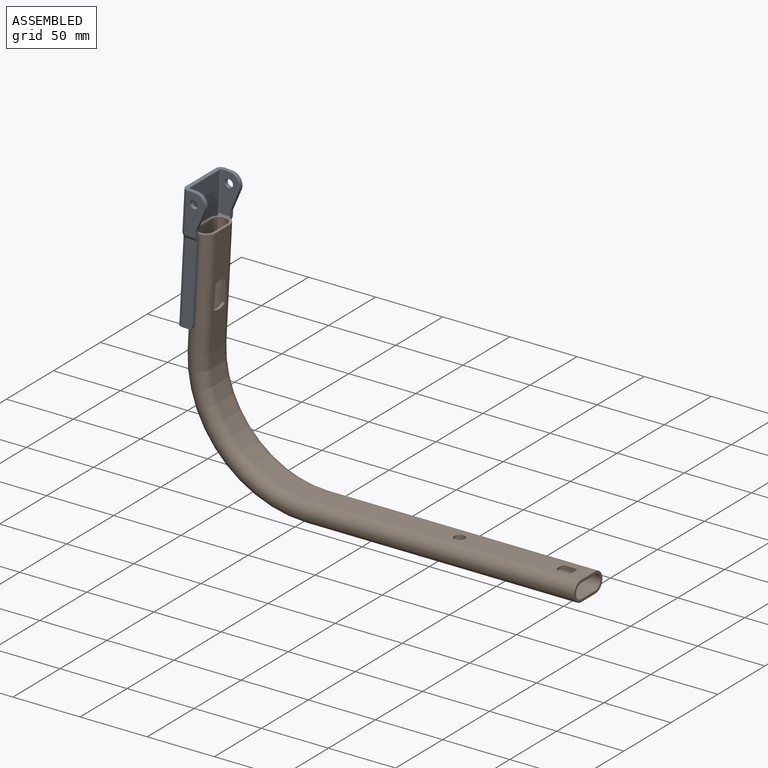
[diagram: assembled view]
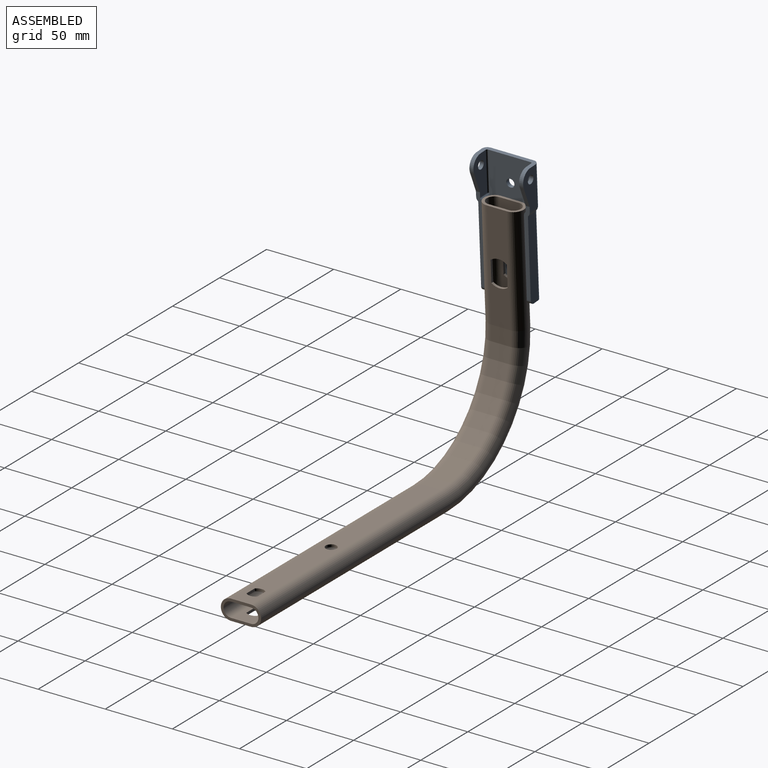
[diagram: assembled view, second angle]
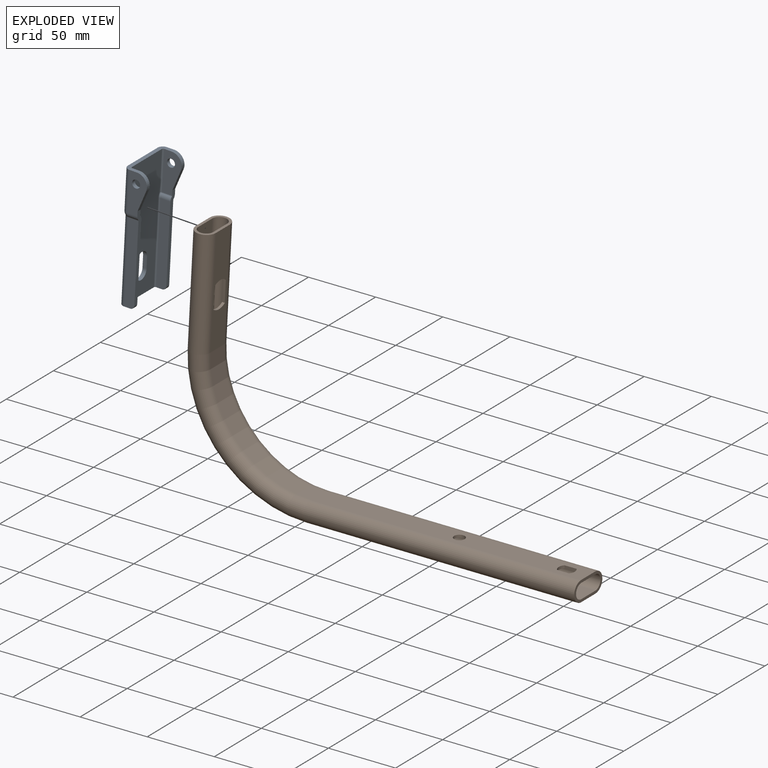
[diagram: exploded view]
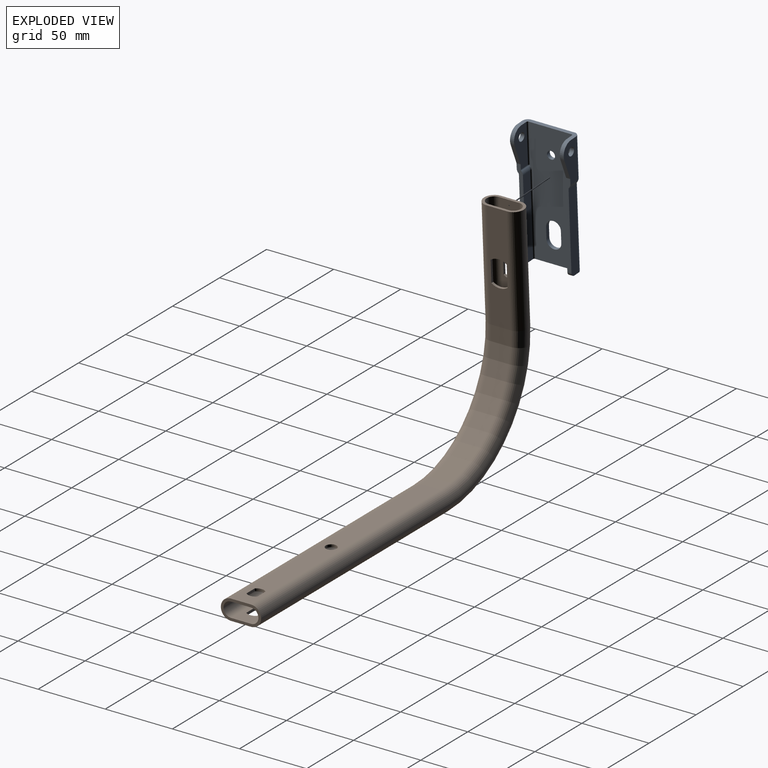
[diagram: exploded view, second angle]
ASSEMBLY  parts=2 mates=2
PART A: 59 faces, bbox 94x40x17.5 mm
  f0: plane 40x9.5mm, normal (1,0,0), area 152.6mm2, adj f1,f2,f3,f4,f5,f6,f14,f16
  f1: plane 29.59x13.5mm, normal (0,1,0), area 285.7mm2, adj f0,f16,f17,f19,f27,f33,f55
  f2: plane 29.59x13.5mm, normal (0,-1,0), area 285.7mm2, adj f0,f16,f17,f19,f27,f31,f41
  f3: plane 94x32mm, normal (0,0,1), area 2601.3mm2, adj f0,f7,f8,f9,f10,f11,f36,f38
  f4: plane 29.59x13.5mm, normal (0,1,0), area 285.7mm2, adj f0,f14,f15,f18,f26,f28,f36
  f5: plane 29.59x13.5mm, normal (0,-1,0), area 285.7mm2, adj f0,f14,f15,f18,f26,f32,f50
  f6: plane 94x32mm, normal (0,0,-1), area 2601.3mm2, adj f0,f7,f8,f9,f10,f11,f46,f47
  f7: plane 37x8.5mm, normal (-1,0,0), area 137.6mm2, adj f3,f6,f12,f13,f23,f24,f40,f45
  f8: cylinder r=5.5mm len=11mm, axis (0,0,-1), area 51.8mm2, adj f3,f6,f9,f11
  f9: plane 8.5x3mm, normal (0,1,0), area 25.5mm2, adj f3,f6,f8,f10
  f10: cylinder r=5.5mm len=11mm, axis (0,0,-1), area 51.8mm2, adj f3,f6,f9,f11
  f11: plane 8.5x3mm, normal (0,-1,0), area 25.5mm2, adj f3,f6,f8,f10
  f12: plane 60.84x7.5mm, normal (0,-1,0), area 454.4mm2, adj f7,f19,f34,f45,f56
  f13: plane 60.84x7.5mm, normal (0,1,0), area 454.4mm2, adj f7,f18,f35,f40,f57
  f14: cylinder r=8mm len=10.74mm, axis (0,-1,0), area 46.1mm2, adj f0,f4,f5,f15
  f15: plane 15.16x5.52mm, normal (-0.34,0,0.94), area 48.4mm2, adj f4,f5,f14,f18
  f16: cylinder r=8mm len=10.74mm, axis (0,-1,0), area 46.1mm2, adj f0,f1,f2,f17
  f17: plane 15.16x5.52mm, normal (-0.34,0,0.94), area 48.4mm2, adj f1,f2,f16,f19
  f18: plane 65.1x4.5mm, normal (0,0,1), area 196.5mm2, adj f4,f5,f13,f15,f21,f24,f25,f28
  f19: plane 65.1x4.5mm, normal (0,0,1), area 196.5mm2, adj f1,f2,f12,f17,f20,f22,f23,f30
  f20: plane 7.5x0.04mm, normal (0.71,-0.71,0), area 0.4mm2, adj f19,f31,f34,f43
  f21: plane 7.5x0.04mm, normal (0.71,0.71,0), area 0.4mm2, adj f18,f28,f35,f38
  f22: plane 7.5x0.04mm, normal (-0.71,0.71,0), area 0.4mm2, adj f19,f30,f33,f53
  f23: plane 60.84x7.5mm, normal (0,1,0), area 454.4mm2, adj f7,f19,f30,f51,f56
  f24: plane 60.84x7.5mm, normal (0,-1,0), area 454.4mm2, adj f7,f18,f29,f46,f57
  f25: plane 7.5x0.04mm, normal (-0.71,-0.71,0), area 0.4mm2, adj f18,f29,f32,f48
  f26: cylinder r=3mm len=6mm, axis (0,-1,0), area 56.5mm2, adj f4,f5
  f27: cylinder r=3mm len=6mm, axis (0,-1,0), area 56.5mm2, adj f1,f2
  f28: cylinder r=1mm len=7.5mm, axis (0,0,-1), area 5.9mm2, adj f4,f18,f21,f37
  f29: cylinder r=1mm len=7.5mm, axis (0,0,-1), area 5.9mm2, adj f18,f24,f25,f47
  f30: cylinder r=1mm len=7.5mm, axis (0,0,-1), area 5.9mm2, adj f19,f22,f23,f52
  f31: cylinder r=1mm len=7.5mm, axis (0,0,1), area 5.9mm2, adj f2,f19,f20,f42
  f32: cylinder r=4mm len=7.5mm, axis (0,0,-1), area 23.6mm2, adj f5,f18,f25,f49
  f33: cylinder r=4mm len=7.5mm, axis (0,0,1), area 23.6mm2, adj f1,f19,f22,f54
  f34: cylinder r=4mm len=7.5mm, axis (0,0,1), area 23.6mm2, adj f12,f19,f20,f44
  f35: cylinder r=4mm len=7.5mm, axis (0,0,-1), area 23.6mm2, adj f13,f18,f21,f39
  f36: cylinder r=1mm len=29.59mm, axis (1,0,0), area 46.5mm2, adj f0,f3,f4,f37
  f37: sphere r=1mm, area 0.8mm2, adj f28,f36,f38
  f38: cylinder r=1mm len=1mm, axis (-0.71,0.71,0), area 0.1mm2, adj f3,f21,f37,f39
  f39: torus R=5mm, axis (0,0,1), area 5.4mm2, adj f3,f35,f38,f40
  f40: cylinder r=1mm len=60.84mm, axis (-1,0,0), area 95.6mm2, adj f3,f7,f13,f39
  f41: cylinder r=1mm len=29.59mm, axis (1,0,0), area 46.5mm2, adj f0,f2,f3,f42
  f42: sphere r=1mm, area 0.8mm2, adj f31,f41,f43
  f43: cylinder r=1mm len=1mm, axis (0.71,0.71,0), area 0.1mm2, adj f3,f20,f42,f44
  f44: torus R=5mm, axis (0,0,1), area 5.4mm2, adj f3,f34,f43,f45
  f45: cylinder r=1mm len=60.84mm, axis (1,0,0), area 95.6mm2, adj f3,f7,f12,f44
  f46: cylinder r=4mm len=60.84mm, axis (-1,0,0), area 382.3mm2, adj f6,f7,f24,f47
  f47: torus R=5mm, axis (0,0,1), area 12.1mm2, adj f6,f29,f46,f48
  f48: cylinder r=4mm len=4mm, axis (-0.71,0.71,0), area 0.3mm2, adj f6,f25,f47,f49
  f49: sphere r=4mm, area 12.6mm2, adj f32,f48,f50
  f50: cylinder r=4mm len=29.59mm, axis (-1,0,0), area 185.9mm2, adj f0,f5,f6,f49
  f51: cylinder r=4mm len=60.84mm, axis (1,0,0), area 382.3mm2, adj f6,f7,f23,f52
  f52: torus R=5mm, axis (0,0,1), area 12.1mm2, adj f6,f30,f51,f53
  f53: cylinder r=4mm len=4mm, axis (0.71,0.71,0), area 0.3mm2, adj f6,f22,f52,f54
  f54: sphere r=4mm, area 12.6mm2, adj f33,f53,f55
  f55: cylinder r=4mm len=29.59mm, axis (-1,0,0), area 185.9mm2, adj f0,f1,f6,f54
  f56: cylinder r=3mm len=3mm, axis (0,-1,0), area 14.1mm2, adj f7,f12,f19,f23
  f57: cylinder r=3mm len=3mm, axis (0,-1,0), area 14.1mm2, adj f7,f13,f18,f24
  f58: cylinder r=3mm len=6mm, axis (0,0,1), area 56.5mm2, adj f3,f6
PART B: 44 faces, bbox 299x30x183.9 mm
  f0: cylinder r=7.5mm len=201.57mm, axis (-1,0,0), area 4749.3mm2, adj f1,f3,f4,f12
  f1: plane 201.57x15mm, normal (0,0,-1), area 2884.9mm2, adj f0,f2,f5,f12,f34,f35,f36,f37
  f2: cylinder r=7.5mm len=201.57mm, axis (-1,0,0), area 4749.3mm2, adj f1,f3,f6,f12
  f3: plane 201.57x15mm, normal (0,0,1), area 2884.9mm2, adj f0,f2,f7,f12,f39,f40,f41,f42
  f4: torus R=82.5mm, axis (0,1,0), area 3155.2mm2, adj f0,f5,f7,f8
  f5: cylinder r=90mm len=94.71mm, axis (0,1,0), area 2191.3mm2, adj f1,f4,f6,f9
  f6: torus R=82.5mm, axis (0,1,0), area 3155.2mm2, adj f2,f5,f7,f10
  f7: cylinder r=75mm len=78.93mm, axis (0,1,0), area 1826.1mm2, adj f3,f4,f6,f11
  f8: cylinder r=7.5mm len=82.58mm, axis (0.05,0,1), area 1929.8mm2, adj f4,f9,f11,f13
  f9: plane 81.79x15mm, normal (-1,0,0.05), area 1003.8mm2, adj f5,f8,f10,f13,f26,f27,f28,f29
  f10: cylinder r=7.5mm len=82.58mm, axis (0.05,0,1), area 1929.8mm2, adj f6,f9,f11,f13
  f11: plane 81.79x15mm, normal (1,0,-0.05), area 1003.8mm2, adj f7,f8,f10,f13,f30,f31,f32,f33
  f12: plane 30x15mm, normal (1,0,0), area 141.7mm2, adj f0,f1,f2,f3,f14,f15,f16,f17
  f13: plane 30x14.98mm, normal (0.05,0,1), area 141.7mm2, adj f8,f9,f10,f11,f22,f23,f24,f25
  f14: plane 201.57x15mm, normal (0,0,-1), area 2884.9mm2, adj f12,f15,f17,f18,f39,f40,f41,f42
  f15: cylinder r=5.5mm len=201.57mm, axis (-1,0,0), area 3482.8mm2, adj f12,f14,f16,f19
  f16: plane 201.57x15mm, normal (0,0,1), area 2884.9mm2, adj f12,f15,f17,f20,f34,f35,f36,f37
  f17: cylinder r=5.5mm len=201.57mm, axis (-1,0,0), area 3482.8mm2, adj f12,f14,f16,f21
  f18: cylinder r=77mm len=81.03mm, axis (0,1,0), area 1874.7mm2, adj f14,f19,f21,f22
  f19: torus R=82.5mm, axis (0,1,0), area 2313.8mm2, adj f15,f18,f20,f23
  f20: cylinder r=88mm len=92.61mm, axis (0,1,0), area 2142.6mm2, adj f16,f19,f21,f24
  f21: torus R=82.5mm, axis (0,1,0), area 2313.8mm2, adj f17,f18,f20,f25
  f22: plane 81.79x15mm, normal (-1,0,0.05), area 1003.8mm2, adj f13,f18,f23,f25,f30,f31,f32,f33
  f23: cylinder r=5.5mm len=82.37mm, axis (0.05,0,1), area 1415.2mm2, adj f13,f19,f22,f24
  f24: plane 81.79x15mm, normal (1,0,-0.05), area 1003.8mm2, adj f13,f20,f23,f25,f26,f27,f28,f29
  f25: cylinder r=5.5mm len=82.37mm, axis (0.05,0,1), area 1415.2mm2, adj f13,f21,f22,f24
  f26: cylinder r=10mm len=12mm, axis (1,0,-0.05), area 25.7mm2, adj f9,f24,f27,f29
  f27: plane 16.08x2.83mm, normal (0,-1,0), area 32mm2, adj f9,f24,f26,f28
  f28: cylinder r=10mm len=12mm, axis (1,0,-0.05), area 25.7mm2, adj f9,f24,f27,f29
  f29: plane 16.08x2.83mm, normal (0,1,0), area 32mm2, adj f9,f24,f26,f28
  f30: plane 16.08x2.83mm, normal (0,1,0), area 32mm2, adj f11,f22,f31,f33
  f31: cylinder r=10mm len=12mm, axis (1,0,-0.05), area 25.7mm2, adj f11,f22,f30,f32
  f32: plane 16.08x2.83mm, normal (0,-1,0), area 32mm2, adj f11,f22,f31,f33
  f33: cylinder r=10mm len=12mm, axis (1,0,-0.05), area 25.7mm2, adj f11,f22,f30,f32
  f34: cylinder r=6mm len=8mm, axis (0,0,1), area 17.5mm2, adj f1,f16,f35,f37
  f35: plane 8.94x2mm, normal (0,1,0), area 17.9mm2, adj f1,f16,f34,f36
  f36: cylinder r=6mm len=8mm, axis (0,0,1), area 17.5mm2, adj f1,f16,f35,f37
  f37: plane 8.94x2mm, normal (0,-1,0), area 17.9mm2, adj f1,f16,f34,f36
  f38: cylinder r=4mm len=8mm, axis (0,0,1), area 50.3mm2, adj f1,f16
  f39: plane 8.94x2mm, normal (0,-1,0), area 17.9mm2, adj f3,f14,f40,f42
  f40: cylinder r=6mm len=8mm, axis (0,0,1), area 17.5mm2, adj f3,f14,f39,f41
  f41: plane 8.94x2mm, normal (0,1,0), area 17.9mm2, adj f3,f14,f40,f42
  f42: cylinder r=6mm len=8mm, axis (0,0,1), area 17.5mm2, adj f3,f14,f39,f41
  f43: cylinder r=4mm len=8mm, axis (0,0,1), area 50.3mm2, adj f3,f14
PLACE A rot(axis=(0.73,0,0.69),180deg) t=(-326.3,-43.96,49.27)mm
PLACE B t=(-35.77,-43.96,-62.77)mm fixed
MATE planar A.f3 <-> B.f9  axis (1,0,-0.05) through (-323.7,-43.96,98.96)mm
MATE fastened A.f10 <-> B.f9  axis (-1,0,0.05) through (-325.02,-43.96,73.74)mm
